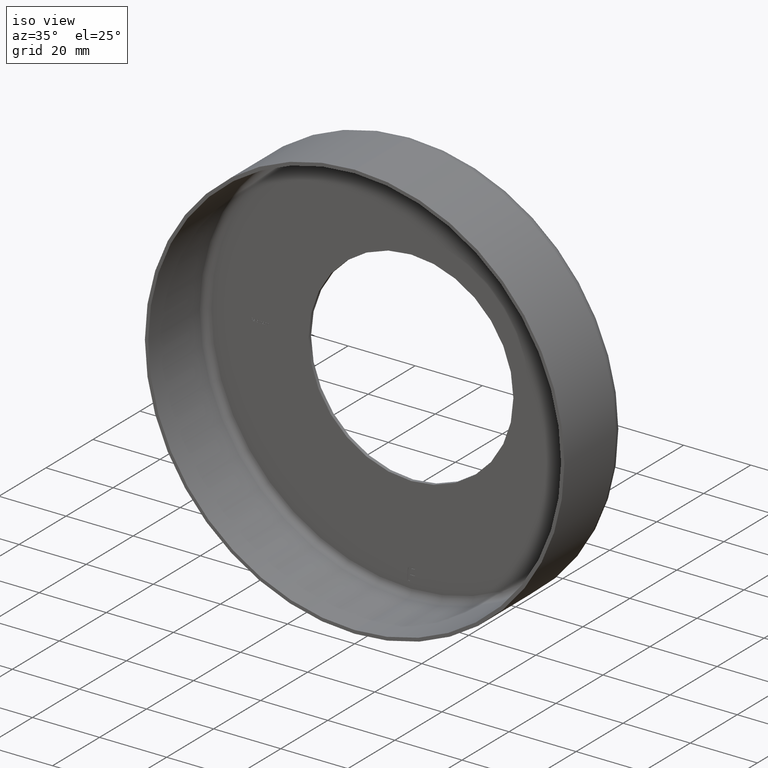
[diagram: clean part render]
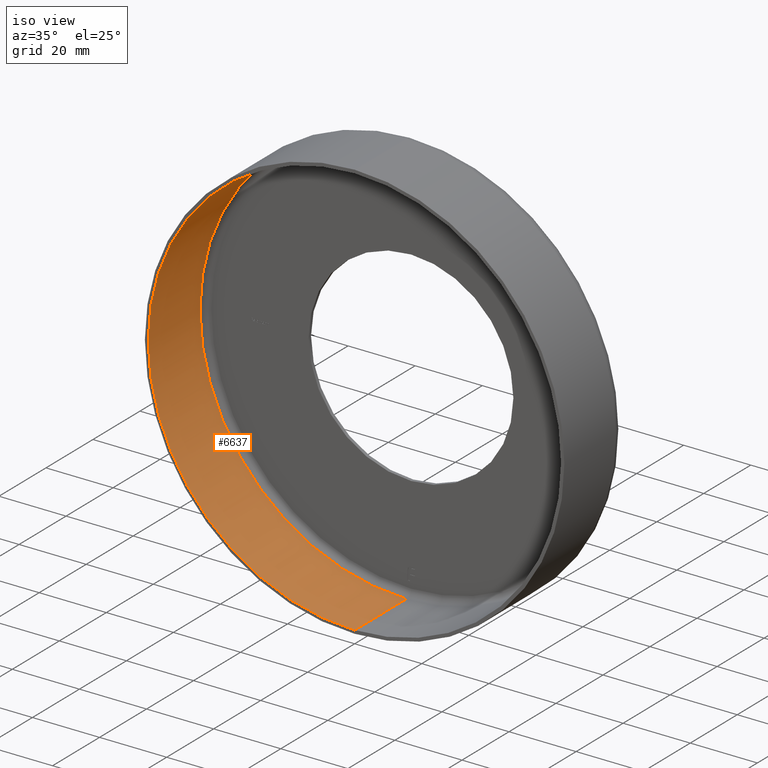
[diagram: same view with one face highlighted and labeled with its STEP entity id]
A machine part, iso view. The second image highlights one B-rep face of the part: STEP entity #6637.
In plain terms, the highlighted cylindrical surface (partial cylindrical patch) has radius 61.5 mm, axis along (-0, -1, -0).
Its self-contained STEP definition (entity closure, byte-faithful):
#332 = AXIS2_PLACEMENT_3D ( 'NONE', #13525, #12740, #12580 ) ;
#912 = CARTESIAN_POINT ( 'NONE',  ( 0.000000000000000000, 0.000000000000000000, -61.50000000000000000 ) ) ;
#1257 = FACE_OUTER_BOUND ( 'NONE', #14743, .T. ) ;
#1309 = CARTESIAN_POINT ( 'NONE',  ( 7.531577814756222656E-15, 22.00000000000000355, 61.50000000000000000 ) ) ;
#1861 = AXIS2_PLACEMENT_3D ( 'NONE', #13570, #8441, #12126 ) ;
#1872 = EDGE_CURVE ( 'NONE', #7300, #2902, #9506, .T. ) ;
#2152 = CARTESIAN_POINT ( 'NONE',  ( 0.000000000000000000, 22.00000000000000355, -61.50000000000000000 ) ) ;
#2902 = VERTEX_POINT ( 'NONE', #13003 ) ;
#3760 = ORIENTED_EDGE ( 'NONE', *, *, #1872, .T. ) ;
#4608 = DIRECTION ( 'NONE',  ( 0.000000000000000000, 0.000000000000000000, -1.000000000000000000 ) ) ;
#4706 = DIRECTION ( 'NONE',  ( -0.000000000000000000, -1.000000000000000000, -0.000000000000000000 ) ) ;
#6637 = ADVANCED_FACE ( 'NONE', ( #1257 ), #13056, .F. ) ;
#7160 = CARTESIAN_POINT ( 'NONE',  ( 0.000000000000000000, -1.224646799147353207E-16, 0.000000000000000000 ) ) ;
#7300 = VERTEX_POINT ( 'NONE', #1309 ) ;
#7849 = ORIENTED_EDGE ( 'NONE', *, *, #8663, .T. ) ;
#8441 = DIRECTION ( 'NONE',  ( -0.000000000000000000, -1.000000000000000000, -0.000000000000000000 ) ) ;
#8458 = ORIENTED_EDGE ( 'NONE', *, *, #9771, .F. ) ;
#8520 = VECTOR ( 'NONE', #16394, 1000.000000000000000 ) ;
#8663 = EDGE_CURVE ( 'NONE', #2902, #16007, #16629, .T. ) ;
#8782 = CARTESIAN_POINT ( 'NONE',  ( 7.531577814756222656E-15, 0.000000000000000000, 61.50000000000000000 ) ) ;
#9506 = LINE ( 'NONE', #8782, #8520 ) ;
#9771 = EDGE_CURVE ( 'NONE', #7300, #15231, #10401, .T. ) ;
#10401 = CIRCLE ( 'NONE', #1861, 61.50000000000000000 ) ;
#11057 = CARTESIAN_POINT ( 'NONE',  ( 0.000000000000000000, -1.224646799147353207E-16, -61.50000000000000000 ) ) ;
#12126 = DIRECTION ( 'NONE',  ( 0.000000000000000000, 0.000000000000000000, -1.000000000000000000 ) ) ;
#12256 = AXIS2_PLACEMENT_3D ( 'NONE', #7160, #12290, #4608 ) ;
#12290 = DIRECTION ( 'NONE',  ( -0.000000000000000000, -1.000000000000000000, -0.000000000000000000 ) ) ;
#12580 = DIRECTION ( 'NONE',  ( 0.000000000000000000, 0.000000000000000000, -1.000000000000000000 ) ) ;
#12740 = DIRECTION ( 'NONE',  ( -0.000000000000000000, -1.000000000000000000, -0.000000000000000000 ) ) ;
#13003 = CARTESIAN_POINT ( 'NONE',  ( 7.531577814756222656E-15, -1.224646799147353207E-16, 61.50000000000000000 ) ) ;
#13056 = CYLINDRICAL_SURFACE ( 'NONE', #332, 61.50000000000000000 ) ;
#13058 = LINE ( 'NONE', #912, #16084 ) ;
#13525 = CARTESIAN_POINT ( 'NONE',  ( 0.000000000000000000, 0.000000000000000000, 0.000000000000000000 ) ) ;
#13570 = CARTESIAN_POINT ( 'NONE',  ( 0.000000000000000000, 22.00000000000000355, 0.000000000000000000 ) ) ;
#14743 = EDGE_LOOP ( 'NONE', ( #8458, #3760, #7849, #15039 ) ) ;
#15039 = ORIENTED_EDGE ( 'NONE', *, *, #15710, .F. ) ;
#15231 = VERTEX_POINT ( 'NONE', #2152 ) ;
#15710 = EDGE_CURVE ( 'NONE', #15231, #16007, #13058, .T. ) ;
#16007 = VERTEX_POINT ( 'NONE', #11057 ) ;
#16084 = VECTOR ( 'NONE', #4706, 1000.000000000000000 ) ;
#16394 = DIRECTION ( 'NONE',  ( -0.000000000000000000, -1.000000000000000000, -0.000000000000000000 ) ) ;
#16629 = CIRCLE ( 'NONE', #12256, 61.50000000000000000 ) ;